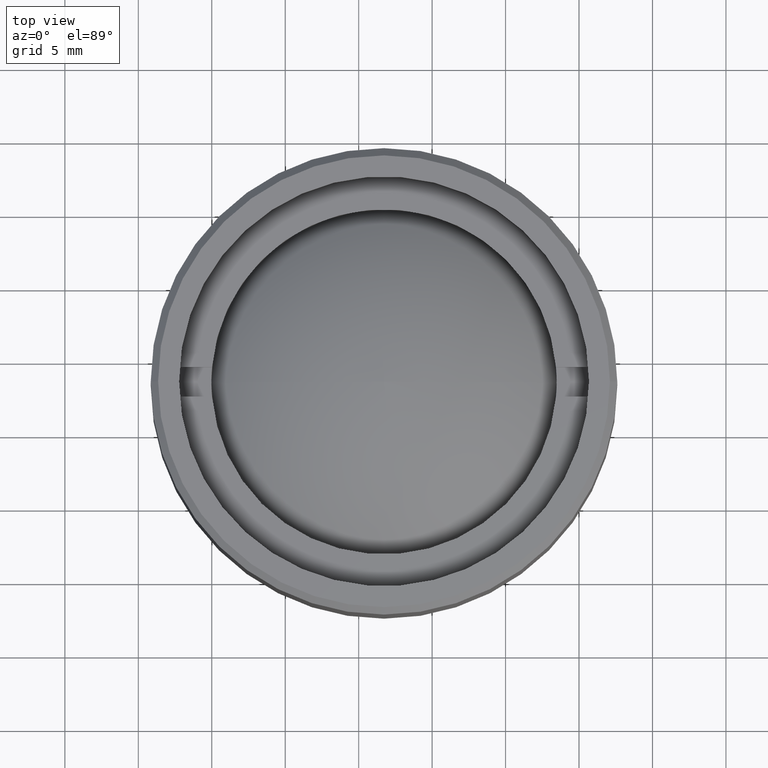
[diagram: clean part render]
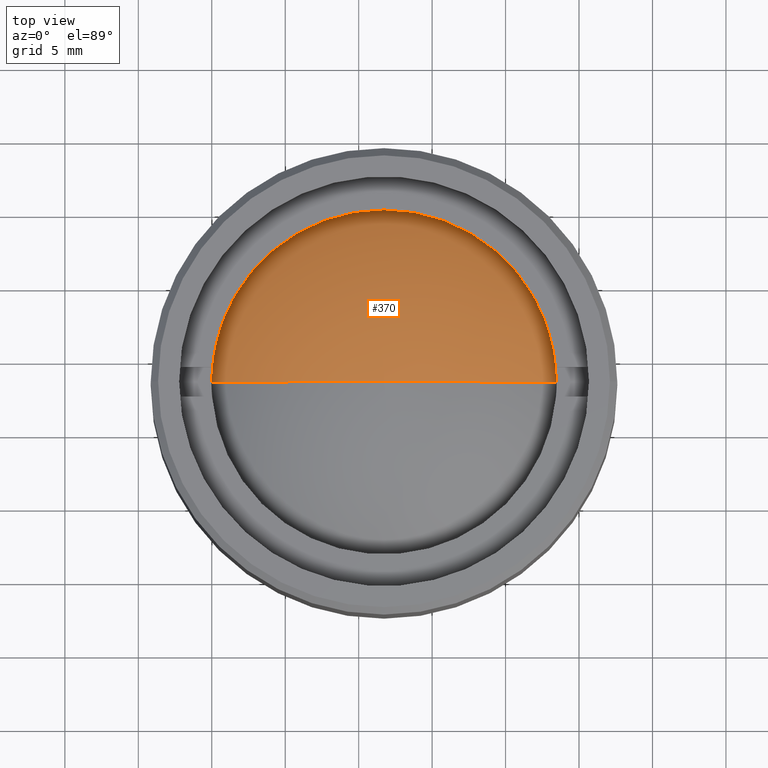
[diagram: same view with one face highlighted and labeled with its STEP entity id]
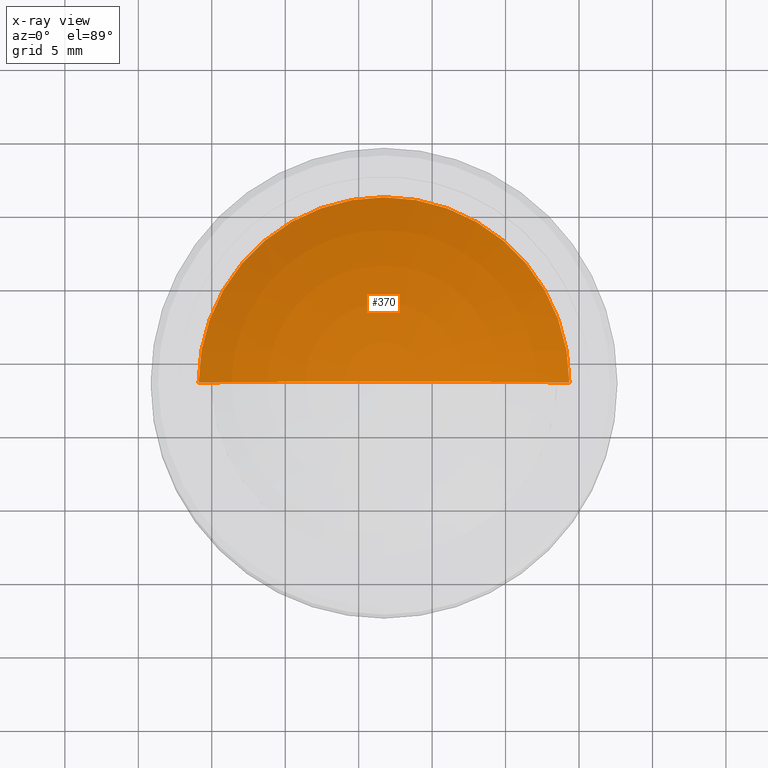
[diagram: x-ray of the same camera — body ghosted, the highlighted face saturated]
A machine part, top view. The second image highlights one B-rep face of the part: STEP entity #370.
The next image is the same camera in x-ray: the body ghosted, the highlighted face saturated — about 0% of this face is hidden behind the body in this view.
In plain terms, the highlighted spherical surface has radius 20.9 mm.
Its self-contained STEP definition (entity closure, byte-faithful):
#45 = DIRECTION ( 'NONE',  ( 0.000000000000000000, -1.000000000000000000, 0.000000000000000000 ) ) ;
#53 = CARTESIAN_POINT ( 'NONE',  ( 0.000000000000000000, 0.000000000000000000, -20.89999999999999858 ) ) ;
#140 = CARTESIAN_POINT ( 'NONE',  ( 12.62077294685989948, 1.550450177065444874E-15, -4.240885671086559228 ) ) ;
#197 = DIRECTION ( 'NONE',  ( 0.000000000000000000, 0.000000000000000000, -1.000000000000000000 ) ) ;
#247 = EDGE_CURVE ( 'NONE', #1640, #1006, #251, .T. ) ;
#251 = CIRCLE ( 'NONE', #738, 20.89999999999999858 ) ;
#274 = CARTESIAN_POINT ( 'NONE',  ( 0.000000000000000000, 0.000000000000000000, -20.89999999999999858 ) ) ;
#295 = DIRECTION ( 'NONE',  ( -1.000000000000000000, 0.000000000000000000, 6.872493005305247142E-17 ) ) ;
#302 = DIRECTION ( 'NONE',  ( 6.872493005305249607E-17, 0.000000000000000000, 1.000000000000000000 ) ) ;
#370 = ADVANCED_FACE ( 'NONE', ( #530 ), #790, .T. ) ;
#530 = FACE_OUTER_BOUND ( 'NONE', #996, .T. ) ;
#672 = ORIENTED_EDGE ( 'NONE', *, *, #951, .T. ) ;
#738 = AXIS2_PLACEMENT_3D ( 'NONE', #53, #45, #197 ) ;
#788 = ORIENTED_EDGE ( 'NONE', *, *, #247, .F. ) ;
#790 = SPHERICAL_SURFACE ( 'NONE', #1164, 20.89999999999999858 ) ;
#951 = EDGE_CURVE ( 'NONE', #1640, #1006, #1373, .T. ) ;
#996 = EDGE_LOOP ( 'NONE', ( #788, #672 ) ) ;
#1006 = VERTEX_POINT ( 'NONE', #1214 ) ;
#1164 = AXIS2_PLACEMENT_3D ( 'NONE', #274, #1692, #1190 ) ;
#1190 = DIRECTION ( 'NONE',  ( -1.000000000000000000, 0.000000000000000000, 1.660022465049576262E-16 ) ) ;
#1214 = CARTESIAN_POINT ( 'NONE',  ( -12.62077294685989948, 0.000000000000000000, -4.240885671086559228 ) ) ;
#1373 = CIRCLE ( 'NONE', #1595, 12.62077294685989948 ) ;
#1500 = CARTESIAN_POINT ( 'NONE',  ( 1.591319421083615131E-15, 0.000000000000000000, -4.240885671086559228 ) ) ;
#1595 = AXIS2_PLACEMENT_3D ( 'NONE', #1500, #302, #295 ) ;
#1640 = VERTEX_POINT ( 'NONE', #140 ) ;
#1692 = DIRECTION ( 'NONE',  ( 1.660022465049576262E-16, -0.000000000000000000, 1.000000000000000000 ) ) ;